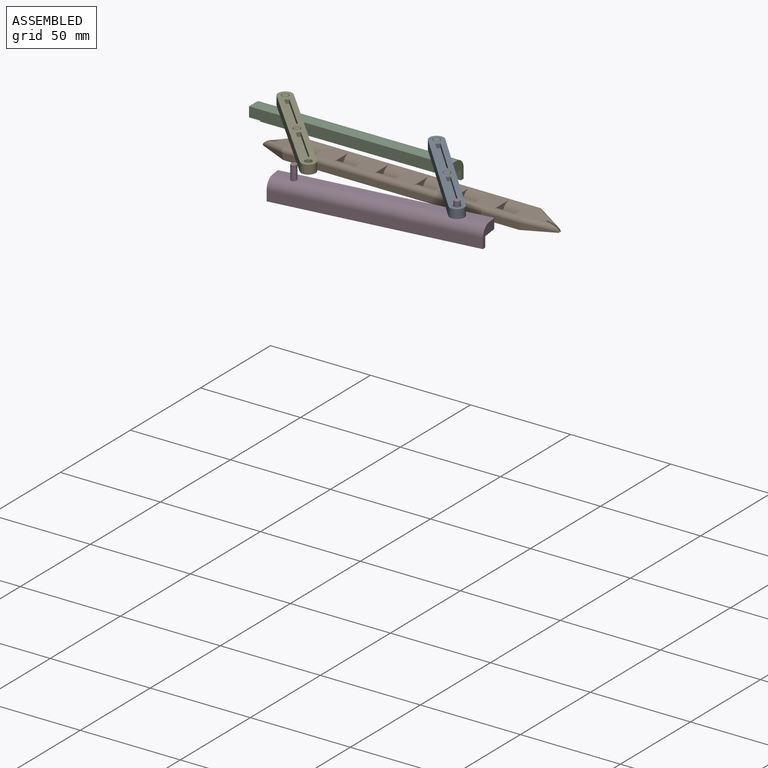
[diagram: assembled view]
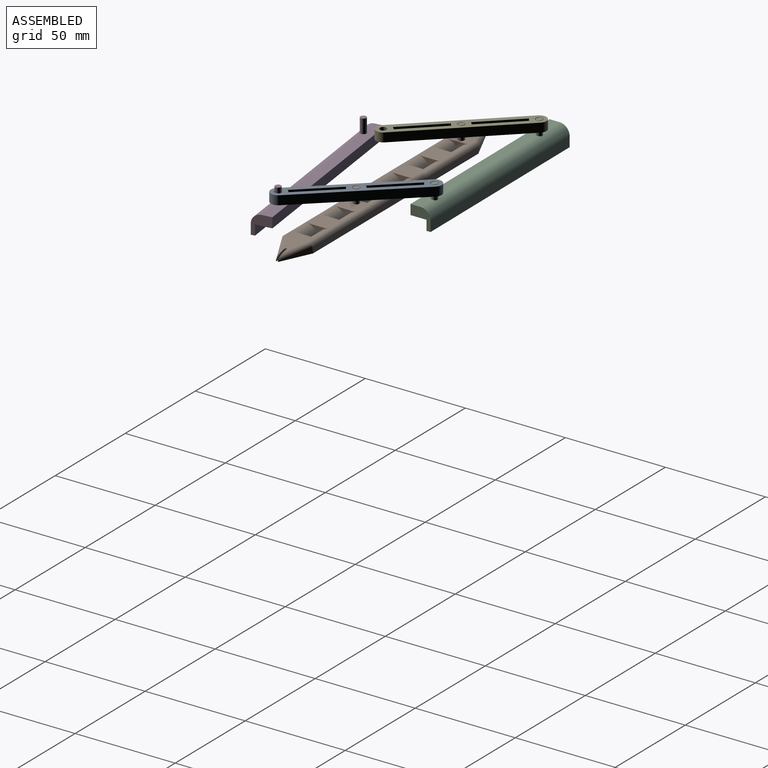
[diagram: assembled view, second angle]
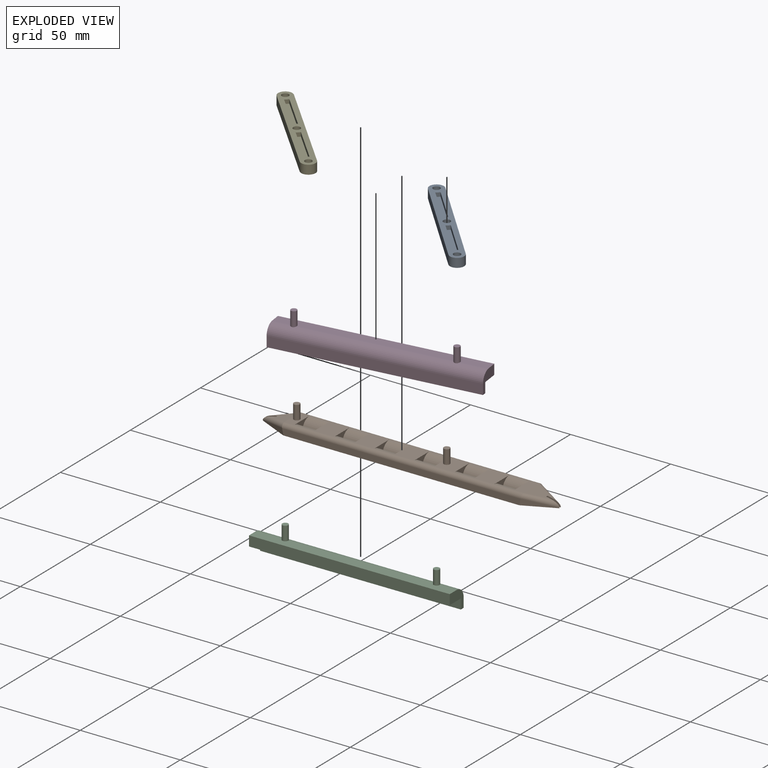
[diagram: exploded view]
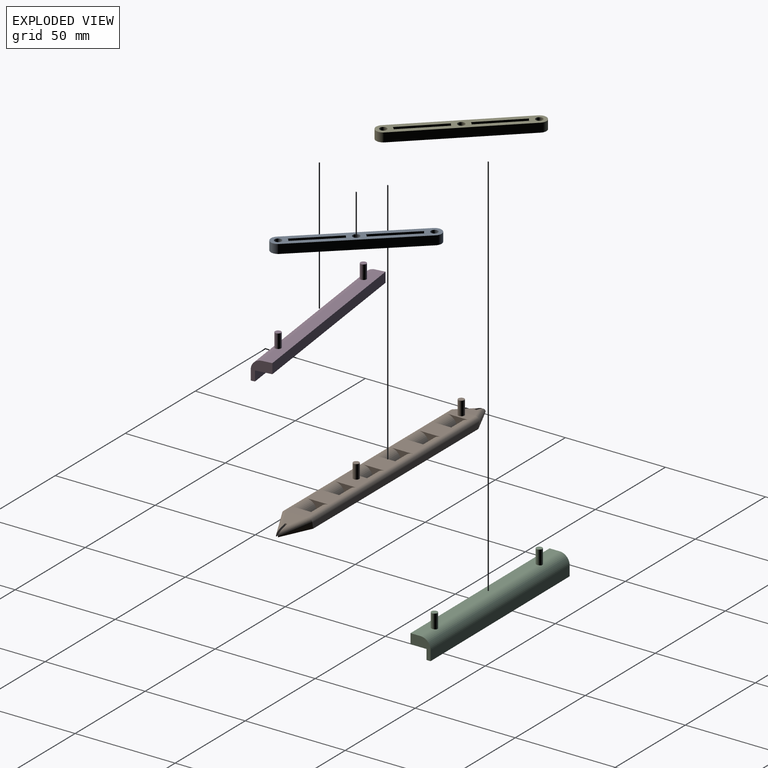
[diagram: exploded view, second angle]
ASSEMBLY  parts=5 mates=6
PART A: 19 faces, bbox 71.8x4.5x7.2 mm
  f0: plane 64.59x4.5mm, normal (0,0,1), area 290.7mm2, adj f1,f6,f7,f8
  f1: cylinder r=3.59mm len=7.18mm, axis (0,1,0), area 50.7mm2, adj f0,f2,f7,f8
  f2: plane 64.59x4.5mm, normal (0,0,-1), area 290.7mm2, adj f1,f6,f7,f8
  f3: cylinder r=1.75mm len=4.5mm, axis (0,1,0), area 49.5mm2, adj f7,f8
  f4: cylinder r=1.75mm len=4.5mm, axis (0,1,0), area 49.5mm2, adj f7,f8
  f5: cylinder r=1.75mm len=4.5mm, axis (0,1,0), area 49.5mm2, adj f7,f8
  f6: cylinder r=3.59mm len=7.18mm, axis (0,1,0), area 50.7mm2, adj f0,f2,f7,f8
  f7: plane 71.77x7.18mm, normal (0,-1,0), area 371.1mm2, adj f0,f1,f2,f3,f4,f5,f6,f10
  f8: plane 71.77x7.18mm, normal (0,1,0), area 475.1mm2, adj f0,f1,f2,f3,f4,f5,f6
  f9: plane 24.08x2.18mm, normal (0,-1,0), area 52mm2, adj f10,f11,f12,f13
  f10: plane 24.08x2mm, normal (0,0,-1), area 48.2mm2, adj f7,f9,f12,f13
  f11: plane 24.08x2mm, normal (0,0,1), area 48.2mm2, adj f7,f9,f12,f13
  f12: cylinder r=4.25mm len=2.18mm, axis (0,1,0), area 4.4mm2, adj f7,f9,f10,f11
  f13: cylinder r=4.25mm len=2.18mm, axis (0,1,0), area 4.4mm2, adj f7,f9,f10,f11
  f14: plane 24.08x2.18mm, normal (0,-1,0), area 52mm2, adj f15,f16,f17,f18
  f15: cylinder r=4.25mm len=2.18mm, axis (0,1,0), area 4.4mm2, adj f7,f14,f16,f17
  f16: plane 24.08x2mm, normal (0,0,-1), area 48.2mm2, adj f7,f14,f15,f18
  f17: plane 24.08x2mm, normal (0,0,1), area 48.2mm2, adj f7,f14,f15,f18
  f18: cylinder r=4.25mm len=2.18mm, axis (0,1,0), area 4.4mm2, adj f7,f14,f16,f17
PART B: 56 faces, bbox 148.4x15x12 mm
  f0: plane 11.02x5.02mm, normal (0,0,1), area 55mm2, adj f17,f29,f50,f51,f54,f55
  f1: plane 11x10mm, normal (0,0,1), area 110mm2, adj f16,f18,f50,f51
  f2: plane 11x10mm, normal (0,0,1), area 102.9mm2, adj f19,f20,f32,f50,f51
  f3: plane 11x10mm, normal (0,0,1), area 110mm2, adj f21,f22,f50,f51
  f4: plane 11x10mm, normal (0,0,1), area 110mm2, adj f23,f25,f50,f51
  f5: plane 11x10mm, normal (0,0,1), area 110mm2, adj f24,f26,f50,f51
  f6: plane 119.2x3mm, normal (0,1,0), area 355.8mm2, adj f10,f34,f36,f50
  f7: plane 6.62x3.5mm, normal (0,1,0), area 17.2mm2, adj f10,f14,f28,f37,f53
  f8: plane 6.62x3.5mm, normal (0,-1,0), area 17.2mm2, adj f10,f14,f28,f36,f52
  f9: plane 119.2x3mm, normal (0,-1,0), area 355.8mm2, adj f10,f35,f37,f51
  f10: plane 148.16x15mm, normal (0,0,-1), area 1938.1mm2, adj f6,f7,f8,f9,f11,f12,f14,f15
  f11: plane 6.62x3.5mm, normal (0,1,0), area 17.2mm2, adj f10,f15,f29,f35,f54
  f12: plane 6.62x3.5mm, normal (0,-1,0), area 17.2mm2, adj f10,f15,f29,f34,f55
  f13: plane 11.02x5.02mm, normal (0,0,1), area 47.9mm2, adj f27,f28,f30,f50,f51,f52,f53
  f14: plane 3.5x1mm, normal (-1,0,0), area 3.5mm2, adj f7,f8,f10,f28
  f15: plane 3.5x1mm, normal (1,0,0), area 3.5mm2, adj f10,f11,f12,f29
  f16: plane 11x5mm, normal (1,0,0), area 15.7mm2, adj f1,f10,f38,f39
  f17: plane 11x5mm, normal (-1,0,0), area 15.7mm2, adj f0,f10,f38,f39
  f18: plane 11x5mm, normal (-1,0,0), area 15.7mm2, adj f1,f10,f40,f41
  f19: plane 11x5mm, normal (1,0,0), area 15.7mm2, adj f2,f10,f40,f41
  f20: plane 11x5mm, normal (-1,0,0), area 15.7mm2, adj f2,f10,f42,f43
  f21: plane 11x5mm, normal (1,0,0), area 15.7mm2, adj f3,f10,f42,f43
  f22: plane 11x5mm, normal (-1,0,0), area 15.7mm2, adj f3,f10,f44,f45
  f23: plane 11x5mm, normal (1,0,0), area 15.7mm2, adj f4,f10,f44,f45
  f24: plane 11x5mm, normal (1,0,0), area 15.7mm2, adj f5,f10,f46,f47
  f25: plane 11x5mm, normal (-1,0,0), area 15.7mm2, adj f4,f10,f46,f47
  f26: plane 11x5mm, normal (-1,0,0), area 15.7mm2, adj f5,f10,f48,f49
  f27: plane 11x5mm, normal (1,0,0), area 15.7mm2, adj f10,f13,f48,f49
  f28: plane 10.57x9.92mm, normal (-0.2,0,0.98), area 56.1mm2, adj f7,f8,f13,f14,f52,f53
  f29: plane 10.57x9.92mm, normal (0.2,0,0.98), area 56.1mm2, adj f0,f11,f12,f15,f54,f55
  f30: cylinder r=1.5mm len=7mm, axis (0,0,-1), area 66mm2, adj f13,f31
  f31: plane 3x3mm, normal (0,0,1), area 7.1mm2, adj f30
  f32: cylinder r=1.5mm len=7mm, axis (0,0,-1), area 66mm2, adj f2,f33
  f33: plane 3x3mm, normal (0,0,1), area 7.1mm2, adj f32
  f34: plane 15.11x7mm, normal (0.42,0.9,-0.08), area 26.5mm2, adj f6,f10,f12,f50,f55
  f35: plane 15.11x7mm, normal (0.42,-0.9,-0.08), area 26.5mm2, adj f9,f10,f11,f51,f54
  f36: plane 15.11x7mm, normal (-0.42,0.9,-0.08), area 26.5mm2, adj f6,f8,f10,f50,f52
  f37: plane 15.11x7mm, normal (-0.42,-0.9,-0.08), area 26.5mm2, adj f7,f9,f10,f51,f53
  f38: cylinder r=5mm len=10mm, axis (-1,0,0), area 78.5mm2, adj f10,f16,f17,f51
  f39: cylinder r=5mm len=10mm, axis (1,0,0), area 78.5mm2, adj f10,f16,f17,f50
  f40: cylinder r=5mm len=10mm, axis (1,0,0), area 78.5mm2, adj f10,f18,f19,f50
  f41: cylinder r=5mm len=10mm, axis (-1,0,0), area 78.5mm2, adj f10,f18,f19,f51
  f42: cylinder r=5mm len=10mm, axis (1,0,0), area 78.5mm2, adj f10,f20,f21,f50
  f43: cylinder r=5mm len=10mm, axis (-1,0,0), area 78.5mm2, adj f10,f20,f21,f51
  f44: cylinder r=5mm len=10mm, axis (1,0,0), area 78.5mm2, adj f10,f22,f23,f50
  f45: cylinder r=5mm len=10mm, axis (-1,0,0), area 78.5mm2, adj f10,f22,f23,f51
  f46: cylinder r=5mm len=10mm, axis (-1,0,0), area 78.5mm2, adj f10,f24,f25,f51
  f47: cylinder r=5mm len=10mm, axis (1,0,0), area 78.5mm2, adj f10,f24,f25,f50
  f48: cylinder r=5mm len=10mm, axis (1,0,0), area 78.5mm2, adj f10,f26,f27,f50
  f49: cylinder r=5mm len=10mm, axis (-1,0,0), area 78.5mm2, adj f10,f26,f27,f51
  f50: cylinder r=2mm len=119.92mm, axis (1,0,0), area 375.7mm2, adj f0,f1,f2,f3,f4,f5,f6,f13
  f51: cylinder r=2mm len=119.92mm, axis (-1,0,0), area 375.7mm2, adj f0,f1,f2,f3,f4,f5,f9,f13
  f52: cylinder r=2mm len=15.03mm, axis (-0.89,-0.43,-0.18), area 45.7mm2, adj f8,f13,f28,f36,f50
  f53: cylinder r=2mm len=15.03mm, axis (0.89,-0.43,0.18), area 45.7mm2, adj f7,f13,f28,f37,f51
  f54: cylinder r=2mm len=15.03mm, axis (-0.89,-0.43,0.18), area 45.7mm2, adj f0,f11,f29,f35,f51
  f55: cylinder r=2mm len=15.03mm, axis (0.89,-0.43,-0.18), area 45.7mm2, adj f0,f12,f29,f34,f50
PART C: 13 faces, bbox 100x17x10 mm
  f0: plane 100x8mm, normal (0,-1,0), area 800mm2, adj f2,f3,f4,f10
  f1: plane 100x5mm, normal (0,0,1), area 500mm2, adj f2,f4,f11,f12
  f2: plane 10x10mm, normal (-1,0,0), area 54.6mm2, adj f0,f1,f3,f5,f10,f11,f12
  f3: plane 100x5mm, normal (0,0,-1), area 500mm2, adj f0,f2,f4,f5
  f4: plane 10x10mm, normal (1,0,0), area 54.6mm2, adj f0,f1,f3,f5,f10,f11,f12
  f5: plane 100x5mm, normal (0,1,0), area 492.9mm2, adj f2,f3,f4,f6,f8,f12
  f6: cylinder r=1.5mm len=7.23mm, axis (0,-1,0), area 66.5mm2, adj f5,f7,f12
  f7: plane 3x3mm, normal (0,1,0), area 7.1mm2, adj f6
  f8: cylinder r=1.5mm len=7.23mm, axis (0,-1,0), area 66.5mm2, adj f5,f9,f12
  f9: plane 3x3mm, normal (0,1,0), area 7.1mm2, adj f8
  f10: plane 100x5mm, normal (0,0,-1), area 500mm2, adj f0,f2,f4,f11
  f11: plane 100x2mm, normal (0,-1,0), area 200mm2, adj f1,f2,f4,f10
  f12: cylinder r=5mm len=100mm, axis (-1,0,0), area 778.2mm2, adj f1,f2,f4,f5,f6,f8
PART D: same geometry as C
PART E: same geometry as A
PLACE A rot(axis=(-0.3,-0.68,0.68),146.9deg) t=(25.76,3.56,-0.32)mm
PLACE B t=(8.26,3.56,-7.82)mm fixed
PLACE C rot(axis=(0,-0.71,-0.71),179.8deg) t=(-33.75,27.2,-2.82)mm
PLACE D rot(axis=(1,0.06,0.06),90.2deg) t=(10.16,-25.12,-0.32)mm
PLACE E rot(axis=(-0.85,0.37,-0.37),99deg) t=(-49.24,3.56,-0.32)mm
MATE revolute B.f32 <-> A.f4  axis (0,0,1) through (25.76,3.56,4.18)mm
MATE revolute C.f6 <-> A.f5  axis (0,0,1) through (3.96,27.38,4.18)mm
MATE cylindrical B.f30 <-> E.f4  axis (0,0,1) through (-49.24,3.56,4.18)mm
MATE revolute D.f8 <-> A.f1  axis (0,0,1) through (47.55,-20.27,-0.32)mm
MATE revolute A.f4 <-> A.f4  axis (0,0,1) through (25.76,3.56,4.18)mm
MATE cylindrical C.f8 <-> E.f1  axis (0,0,1) through (-71.45,27.01,4.18)mm
